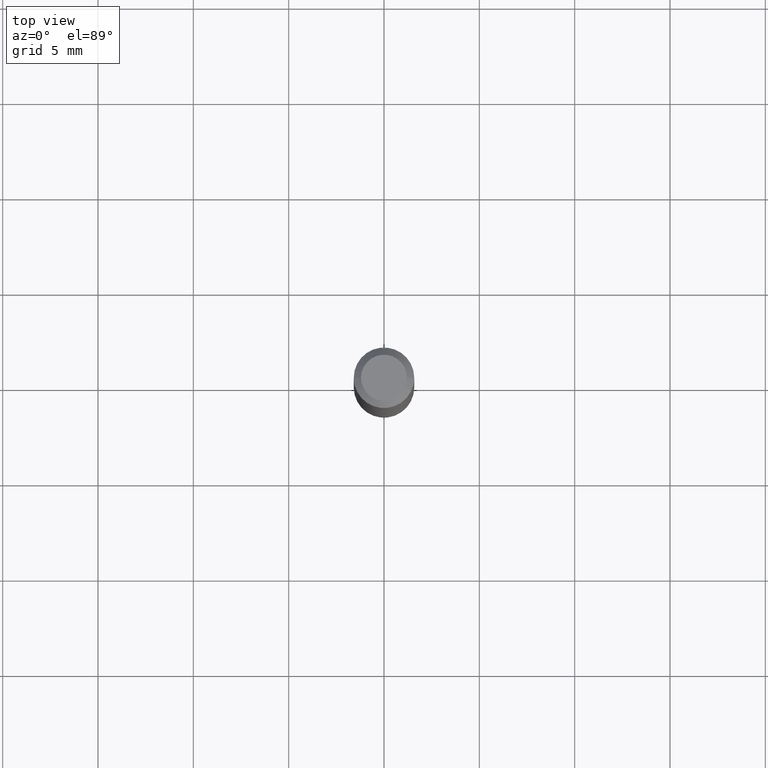
[diagram: clean part render]
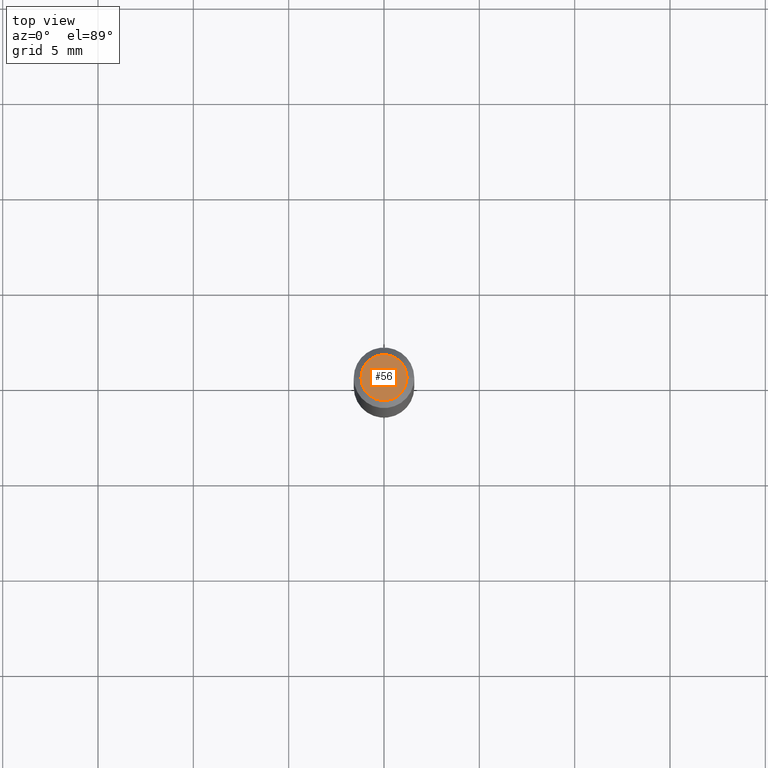
[diagram: same view with one face highlighted and labeled with its STEP entity id]
A machine part, top view. The second image highlights one B-rep face of the part: STEP entity #56.
In plain terms, the highlighted planar face has unit normal (0, -0, -1).
Its self-contained STEP definition (entity closure, byte-faithful):
#40 = CIRCLE ( 'NONE', #311, 0.04749999999999999362 ) ;
#45 = VERTEX_POINT ( 'NONE', #73 ) ;
#56 = ADVANCED_FACE ( 'NONE', ( #392 ), #258, .F. ) ;
#73 = CARTESIAN_POINT ( 'NONE',  ( -0.04749999999999999362, 3.578768372314216422E-16, 3.291702847796717707E-16 ) ) ;
#94 = AXIS2_PLACEMENT_3D ( 'NONE', #432, #372, #357 ) ;
#112 = AXIS2_PLACEMENT_3D ( 'NONE', #183, #290, #150 ) ;
#114 = CARTESIAN_POINT ( 'NONE',  ( -8.049756633517713463E-45, 1.149291906609916432E-30, 3.291702847796741866E-16 ) ) ;
#117 = DIRECTION ( 'NONE',  ( -2.445468806185136597E-29, 3.491481338843145583E-15, 1.000000000000000000 ) ) ;
#150 = DIRECTION ( 'NONE',  ( -1.000000000000000000, 6.982962677686265922E-15, -4.876176775795935793E-29 ) ) ;
#183 = CARTESIAN_POINT ( 'NONE',  ( 3.316907271900976096E-16, 0.04749999999999999362, -1.260221205212306812E-18 ) ) ;
#204 = VERTEX_POINT ( 'NONE', #257 ) ;
#207 = EDGE_CURVE ( 'NONE', #45, #204, #243, .T. ) ;
#241 = EDGE_LOOP ( 'NONE', ( #457, #448 ) ) ;
#243 = CIRCLE ( 'NONE', #94, 0.04749999999999999362 ) ;
#257 = CARTESIAN_POINT ( 'NONE',  ( 0.04749999999999999362, -4.035134999187572707E-16, 3.291702847796767504E-16 ) ) ;
#258 = PLANE ( 'NONE',  #112 ) ;
#290 = DIRECTION ( 'NONE',  ( 2.438088387897960049E-29, -3.491481338843145188E-15, -1.000000000000000000 ) ) ;
#298 = EDGE_CURVE ( 'NONE', #204, #45, #40, .T. ) ;
#299 = DIRECTION ( 'NONE',  ( 1.000000000000000000, -6.982962677686267499E-15, 4.852736867747366768E-29 ) ) ;
#311 = AXIS2_PLACEMENT_3D ( 'NONE', #114, #117, #299 ) ;
#357 = DIRECTION ( 'NONE',  ( 1.000000000000000000, -6.982962677686267499E-15, 4.852736867747366768E-29 ) ) ;
#372 = DIRECTION ( 'NONE',  ( -2.445468806185136597E-29, 3.491481338843145583E-15, 1.000000000000000000 ) ) ;
#392 = FACE_OUTER_BOUND ( 'NONE', #241, .T. ) ;
#432 = CARTESIAN_POINT ( 'NONE',  ( -8.049756633517713463E-45, 1.149291906609916432E-30, 3.291702847796741866E-16 ) ) ;
#448 = ORIENTED_EDGE ( 'NONE', *, *, #298, .T. ) ;
#457 = ORIENTED_EDGE ( 'NONE', *, *, #207, .T. ) ;